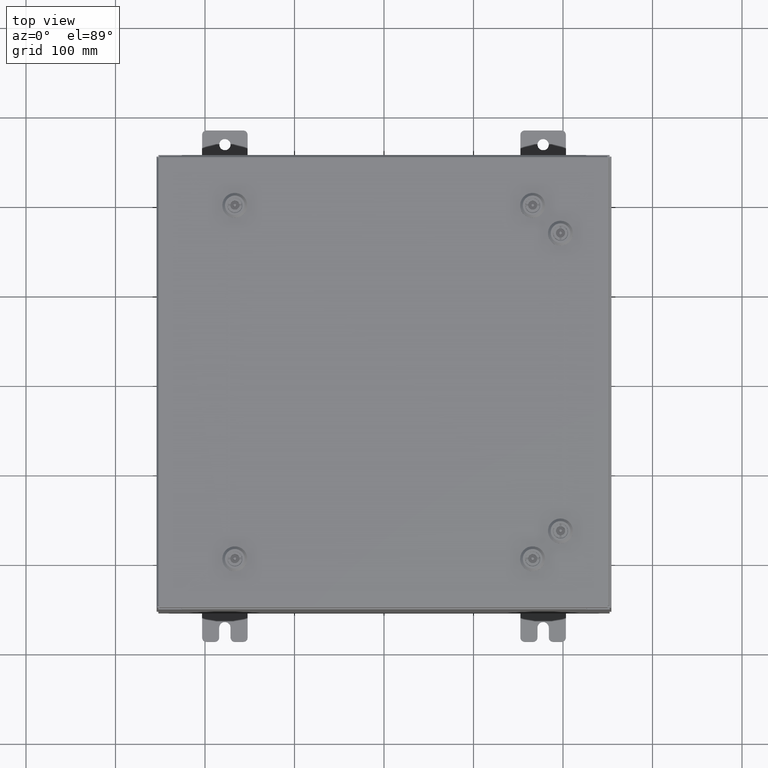
[diagram: clean part render]
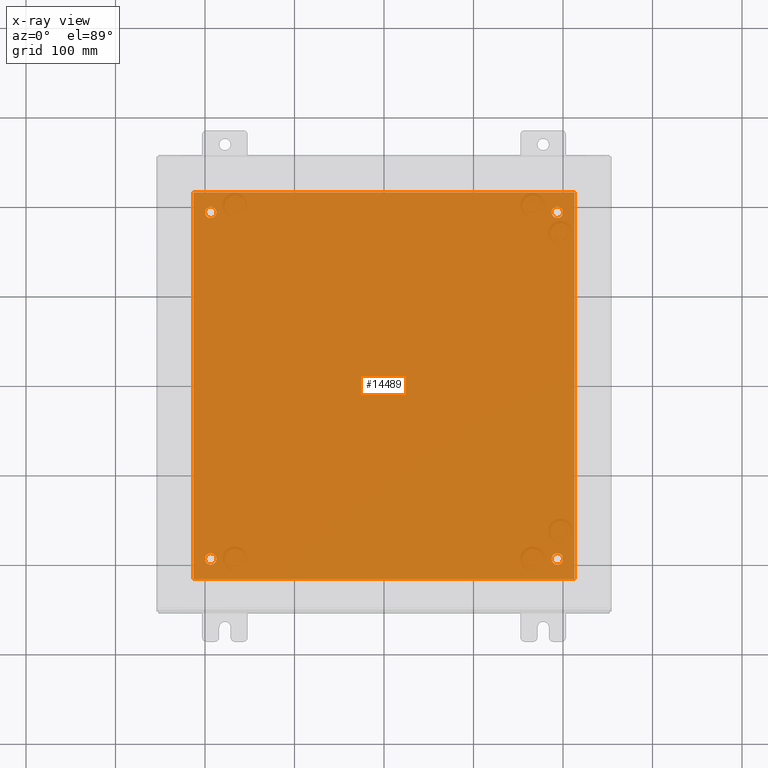
[diagram: x-ray — body ghosted, one internal face saturated and labeled with its STEP entity id]
A machine part, top view, then the same camera in x-ray: the body is ghosted and one INTERNAL B-rep face — a face not visible from any outside direction — is saturated and labeled: STEP entity #14489.
In plain terms, the highlighted planar face has unit normal (0, 0, -1).
Its self-contained STEP definition (entity closure, byte-faithful):
#22 = DIRECTION ( 'NONE',  ( 1.000000000000000000, 0.0000000000000000000, 0.0000000000000000000 ) ) ;
#383 = CARTESIAN_POINT ( 'NONE',  ( 7.625000000000001800, -7.625000000000000900, -0.1039999999999999800 ) ) ;
#767 = ORIENTED_EDGE ( 'NONE', *, *, #2451, .T. ) ;
#772 = VECTOR ( 'NONE', #36690, 39.37007874015748100 ) ;
#1143 = ORIENTED_EDGE ( 'NONE', *, *, #61005, .T. ) ;
#2348 = CARTESIAN_POINT ( 'NONE',  ( -7.875000000000001800, -7.625000000000000900, -0.1039999999999999800 ) ) ;
#2439 = DIRECTION ( 'NONE',  ( -0.0000000000000000000, -0.0000000000000000000, 1.000000000000000000 ) ) ;
#2451 = EDGE_CURVE ( 'NONE', #60134, #4956, #4232, .T. ) ;
#3857 = ORIENTED_EDGE ( 'NONE', *, *, #16940, .F. ) ;
#4232 = CIRCLE ( 'NONE', #59120, 0.2499999999999987000 ) ;
#4956 = VERTEX_POINT ( 'NONE', #61649 ) ;
#5061 = AXIS2_PLACEMENT_3D ( 'NONE', #46557, #17250, #51479 ) ;
#5665 = CARTESIAN_POINT ( 'NONE',  ( 7.625000000000001800, -7.625000000000000900, -0.1039999999999999800 ) ) ;
#6302 = EDGE_CURVE ( 'NONE', #48319, #33596, #51547, .T. ) ;
#6516 = FACE_BOUND ( 'NONE', #21454, .T. ) ;
#6731 = VERTEX_POINT ( 'NONE', #58644 ) ;
#7355 = CARTESIAN_POINT ( 'NONE',  ( -8.382999999999999100, 8.500000000000000000, -0.1039999999999998100 ) ) ;
#7378 = EDGE_CURVE ( 'NONE', #49805, #6731, #45982, .T. ) ;
#9141 = EDGE_LOOP ( 'NONE', ( #45025, #39701, #3857, #36186 ) ) ;
#10063 = CARTESIAN_POINT ( 'NONE',  ( -7.625000000000001800, -7.625000000000000900, -0.1039999999999999800 ) ) ;
#10612 = DIRECTION ( 'NONE',  ( -1.000000000000000000, 0.0000000000000000000, 0.0000000000000000000 ) ) ;
#11622 = PLANE ( 'NONE',  #29850 ) ;
#12823 = CARTESIAN_POINT ( 'NONE',  ( -8.382999999999999100, 8.500000000000000000, -0.1039999999999998100 ) ) ;
#13215 = CIRCLE ( 'NONE', #30408, 0.2499999999999987000 ) ;
#14489 = ADVANCED_FACE ( 'NONE', ( #32557, #6516, #22662, #19565, #57137 ), #11622, .T. ) ;
#14815 = LINE ( 'NONE', #54471, #26346 ) ;
#15146 = EDGE_LOOP ( 'NONE', ( #46134, #1143 ) ) ;
#16940 = EDGE_CURVE ( 'NONE', #61458, #41004, #42429, .T. ) ;
#16968 = EDGE_CURVE ( 'NONE', #33621, #35952, #50863, .T. ) ;
#17001 = AXIS2_PLACEMENT_3D ( 'NONE', #10063, #49396, #48135 ) ;
#17250 = DIRECTION ( 'NONE',  ( -0.0000000000000000000, -0.0000000000000000000, 1.000000000000000000 ) ) ;
#17332 = CARTESIAN_POINT ( 'NONE',  ( 8.383000000000000900, 8.500000000000000000, -0.1039999999999999800 ) ) ;
#18551 = DIRECTION ( 'NONE',  ( -0.0000000000000000000, -0.0000000000000000000, 1.000000000000000000 ) ) ;
#19045 = EDGE_CURVE ( 'NONE', #6731, #49805, #46142, .T. ) ;
#19565 = FACE_BOUND ( 'NONE', #47936, .T. ) ;
#21454 = EDGE_LOOP ( 'NONE', ( #61945, #767 ) ) ;
#21493 = DIRECTION ( 'NONE',  ( 0.0000000000000000000, 0.0000000000000000000, -1.000000000000000000 ) ) ;
#22319 = EDGE_CURVE ( 'NONE', #38492, #24692, #54969, .T. ) ;
#22662 = FACE_BOUND ( 'NONE', #15146, .T. ) ;
#22800 = CARTESIAN_POINT ( 'NONE',  ( 8.383000000000000900, -8.499999999999998200, -0.1039999999999999800 ) ) ;
#24120 = CARTESIAN_POINT ( 'NONE',  ( 7.375000000000003600, -7.625000000000000900, -0.1039999999999999800 ) ) ;
#24453 = CARTESIAN_POINT ( 'NONE',  ( -8.500000000000000000, -8.499999999999998200, -0.1039999999999999800 ) ) ;
#24480 = ORIENTED_EDGE ( 'NONE', *, *, #22319, .T. ) ;
#24541 = CARTESIAN_POINT ( 'NONE',  ( -8.382999999999999100, -8.499999999999998200, -0.1039999999999998100 ) ) ;
#24692 = VERTEX_POINT ( 'NONE', #33249 ) ;
#26346 = VECTOR ( 'NONE', #30935, 39.37007874015748100 ) ;
#26352 = VECTOR ( 'NONE', #58540, 39.37007874015748100 ) ;
#26758 = EDGE_CURVE ( 'NONE', #35952, #61458, #14815, .T. ) ;
#26861 = CIRCLE ( 'NONE', #52508, 0.2499999999999998100 ) ;
#27123 = CARTESIAN_POINT ( 'NONE',  ( -7.625000000000001800, 7.625000000000000900, -0.1039999999999999800 ) ) ;
#27718 = EDGE_CURVE ( 'NONE', #4956, #60134, #13215, .T. ) ;
#27879 = CARTESIAN_POINT ( 'NONE',  ( 7.625000000000001800, 7.625000000000000900, -0.1039999999999999800 ) ) ;
#28076 = DIRECTION ( 'NONE',  ( -0.0000000000000000000, -0.0000000000000000000, 1.000000000000000000 ) ) ;
#28271 = DIRECTION ( 'NONE',  ( -1.000000000000000000, 0.0000000000000000000, 0.0000000000000000000 ) ) ;
#28432 = DIRECTION ( 'NONE',  ( -0.0000000000000000000, -0.0000000000000000000, 1.000000000000000000 ) ) ;
#29117 = CARTESIAN_POINT ( 'NONE',  ( -8.500000000000000000, 8.500000000000000000, -0.1039999999999999800 ) ) ;
#29736 = CARTESIAN_POINT ( 'NONE',  ( 7.875000000000000900, 7.625000000000000900, -0.1039999999999999800 ) ) ;
#29850 = AXIS2_PLACEMENT_3D ( 'NONE', #31077, #21493, #55767 ) ;
#30408 = AXIS2_PLACEMENT_3D ( 'NONE', #5665, #39943, #10612 ) ;
#30935 = DIRECTION ( 'NONE',  ( 0.0000000000000000000, 1.000000000000000000, 0.0000000000000000000 ) ) ;
#31077 = CARTESIAN_POINT ( 'NONE',  ( 0.0000000000000000000, 0.0000000000000000000, -0.1039999999999999800 ) ) ;
#32016 = DIRECTION ( 'NONE',  ( -1.000000000000000000, 0.0000000000000000000, 0.0000000000000000000 ) ) ;
#32557 = FACE_BOUND ( 'NONE', #42980, .T. ) ;
#32561 = AXIS2_PLACEMENT_3D ( 'NONE', #57841, #28432, #62770 ) ;
#33249 = CARTESIAN_POINT ( 'NONE',  ( -7.875000000000001800, 7.625000000000000900, -0.1039999999999999800 ) ) ;
#33442 = ORIENTED_EDGE ( 'NONE', *, *, #7378, .T. ) ;
#33596 = VERTEX_POINT ( 'NONE', #34581 ) ;
#33621 = VERTEX_POINT ( 'NONE', #24541 ) ;
#34566 = ORIENTED_EDGE ( 'NONE', *, *, #19045, .T. ) ;
#34581 = CARTESIAN_POINT ( 'NONE',  ( 7.375000000000003600, 7.625000000000000900, -0.1039999999999999800 ) ) ;
#35952 = VERTEX_POINT ( 'NONE', #22800 ) ;
#36186 = ORIENTED_EDGE ( 'NONE', *, *, #26758, .F. ) ;
#36690 = DIRECTION ( 'NONE',  ( 0.0000000000000000000, -1.000000000000000000, 0.0000000000000000000 ) ) ;
#36812 = LINE ( 'NONE', #7355, #772 ) ;
#37797 = VECTOR ( 'NONE', #22, 39.37007874015748100 ) ;
#37997 = AXIS2_PLACEMENT_3D ( 'NONE', #47874, #18551, #52796 ) ;
#38492 = VERTEX_POINT ( 'NONE', #41257 ) ;
#39701 = ORIENTED_EDGE ( 'NONE', *, *, #53331, .F. ) ;
#39943 = DIRECTION ( 'NONE',  ( -0.0000000000000000000, -0.0000000000000000000, 1.000000000000000000 ) ) ;
#41004 = VERTEX_POINT ( 'NONE', #12823 ) ;
#41257 = CARTESIAN_POINT ( 'NONE',  ( -7.375000000000001800, 7.625000000000000900, -0.1039999999999999800 ) ) ;
#42429 = LINE ( 'NONE', #29117, #26352 ) ;
#42980 = EDGE_LOOP ( 'NONE', ( #34566, #33442 ) ) ;
#43766 = ORIENTED_EDGE ( 'NONE', *, *, #44650, .T. ) ;
#44650 = EDGE_CURVE ( 'NONE', #24692, #38492, #26861, .T. ) ;
#45025 = ORIENTED_EDGE ( 'NONE', *, *, #16968, .F. ) ;
#45982 = CIRCLE ( 'NONE', #17001, 0.2499999999999998100 ) ;
#46134 = ORIENTED_EDGE ( 'NONE', *, *, #6302, .T. ) ;
#46142 = CIRCLE ( 'NONE', #5061, 0.2499999999999998100 ) ;
#46557 = CARTESIAN_POINT ( 'NONE',  ( -7.625000000000001800, -7.625000000000000900, -0.1039999999999999800 ) ) ;
#47874 = CARTESIAN_POINT ( 'NONE',  ( -7.625000000000001800, 7.625000000000000900, -0.1039999999999999800 ) ) ;
#47936 = EDGE_LOOP ( 'NONE', ( #24480, #43766 ) ) ;
#48135 = DIRECTION ( 'NONE',  ( -1.000000000000000000, 0.0000000000000000000, 0.0000000000000000000 ) ) ;
#48319 = VERTEX_POINT ( 'NONE', #29736 ) ;
#49396 = DIRECTION ( 'NONE',  ( -0.0000000000000000000, -0.0000000000000000000, 1.000000000000000000 ) ) ;
#49805 = VERTEX_POINT ( 'NONE', #2348 ) ;
#50863 = LINE ( 'NONE', #24453, #37797 ) ;
#51479 = DIRECTION ( 'NONE',  ( -1.000000000000000000, 0.0000000000000000000, 0.0000000000000000000 ) ) ;
#51547 = CIRCLE ( 'NONE', #53440, 0.2499999999999987000 ) ;
#52508 = AXIS2_PLACEMENT_3D ( 'NONE', #27123, #61443, #32016 ) ;
#52796 = DIRECTION ( 'NONE',  ( -1.000000000000000000, 0.0000000000000000000, 0.0000000000000000000 ) ) ;
#53331 = EDGE_CURVE ( 'NONE', #41004, #33621, #36812, .T. ) ;
#53440 = AXIS2_PLACEMENT_3D ( 'NONE', #27879, #28076, #28271 ) ;
#53732 = DIRECTION ( 'NONE',  ( -1.000000000000000000, 0.0000000000000000000, 0.0000000000000000000 ) ) ;
#54471 = CARTESIAN_POINT ( 'NONE',  ( 8.383000000000000900, -8.499999999999998200, -0.1039999999999998100 ) ) ;
#54969 = CIRCLE ( 'NONE', #37997, 0.2499999999999998100 ) ;
#55767 = DIRECTION ( 'NONE',  ( -1.000000000000000000, 0.0000000000000000000, -0.0000000000000000000 ) ) ;
#57137 = FACE_OUTER_BOUND ( 'NONE', #9141, .T. ) ;
#57841 = CARTESIAN_POINT ( 'NONE',  ( 7.625000000000001800, 7.625000000000000900, -0.1039999999999999800 ) ) ;
#58540 = DIRECTION ( 'NONE',  ( -1.000000000000000000, -0.0000000000000000000, -0.0000000000000000000 ) ) ;
#58644 = CARTESIAN_POINT ( 'NONE',  ( -7.375000000000001800, -7.625000000000000900, -0.1039999999999999800 ) ) ;
#59120 = AXIS2_PLACEMENT_3D ( 'NONE', #383, #2439, #53732 ) ;
#59462 = CIRCLE ( 'NONE', #32561, 0.2499999999999987000 ) ;
#60134 = VERTEX_POINT ( 'NONE', #24120 ) ;
#61005 = EDGE_CURVE ( 'NONE', #33596, #48319, #59462, .T. ) ;
#61443 = DIRECTION ( 'NONE',  ( -0.0000000000000000000, -0.0000000000000000000, 1.000000000000000000 ) ) ;
#61458 = VERTEX_POINT ( 'NONE', #17332 ) ;
#61649 = CARTESIAN_POINT ( 'NONE',  ( 7.875000000000000900, -7.625000000000000900, -0.1039999999999999800 ) ) ;
#61945 = ORIENTED_EDGE ( 'NONE', *, *, #27718, .T. ) ;
#62770 = DIRECTION ( 'NONE',  ( -1.000000000000000000, 0.0000000000000000000, 0.0000000000000000000 ) ) ;